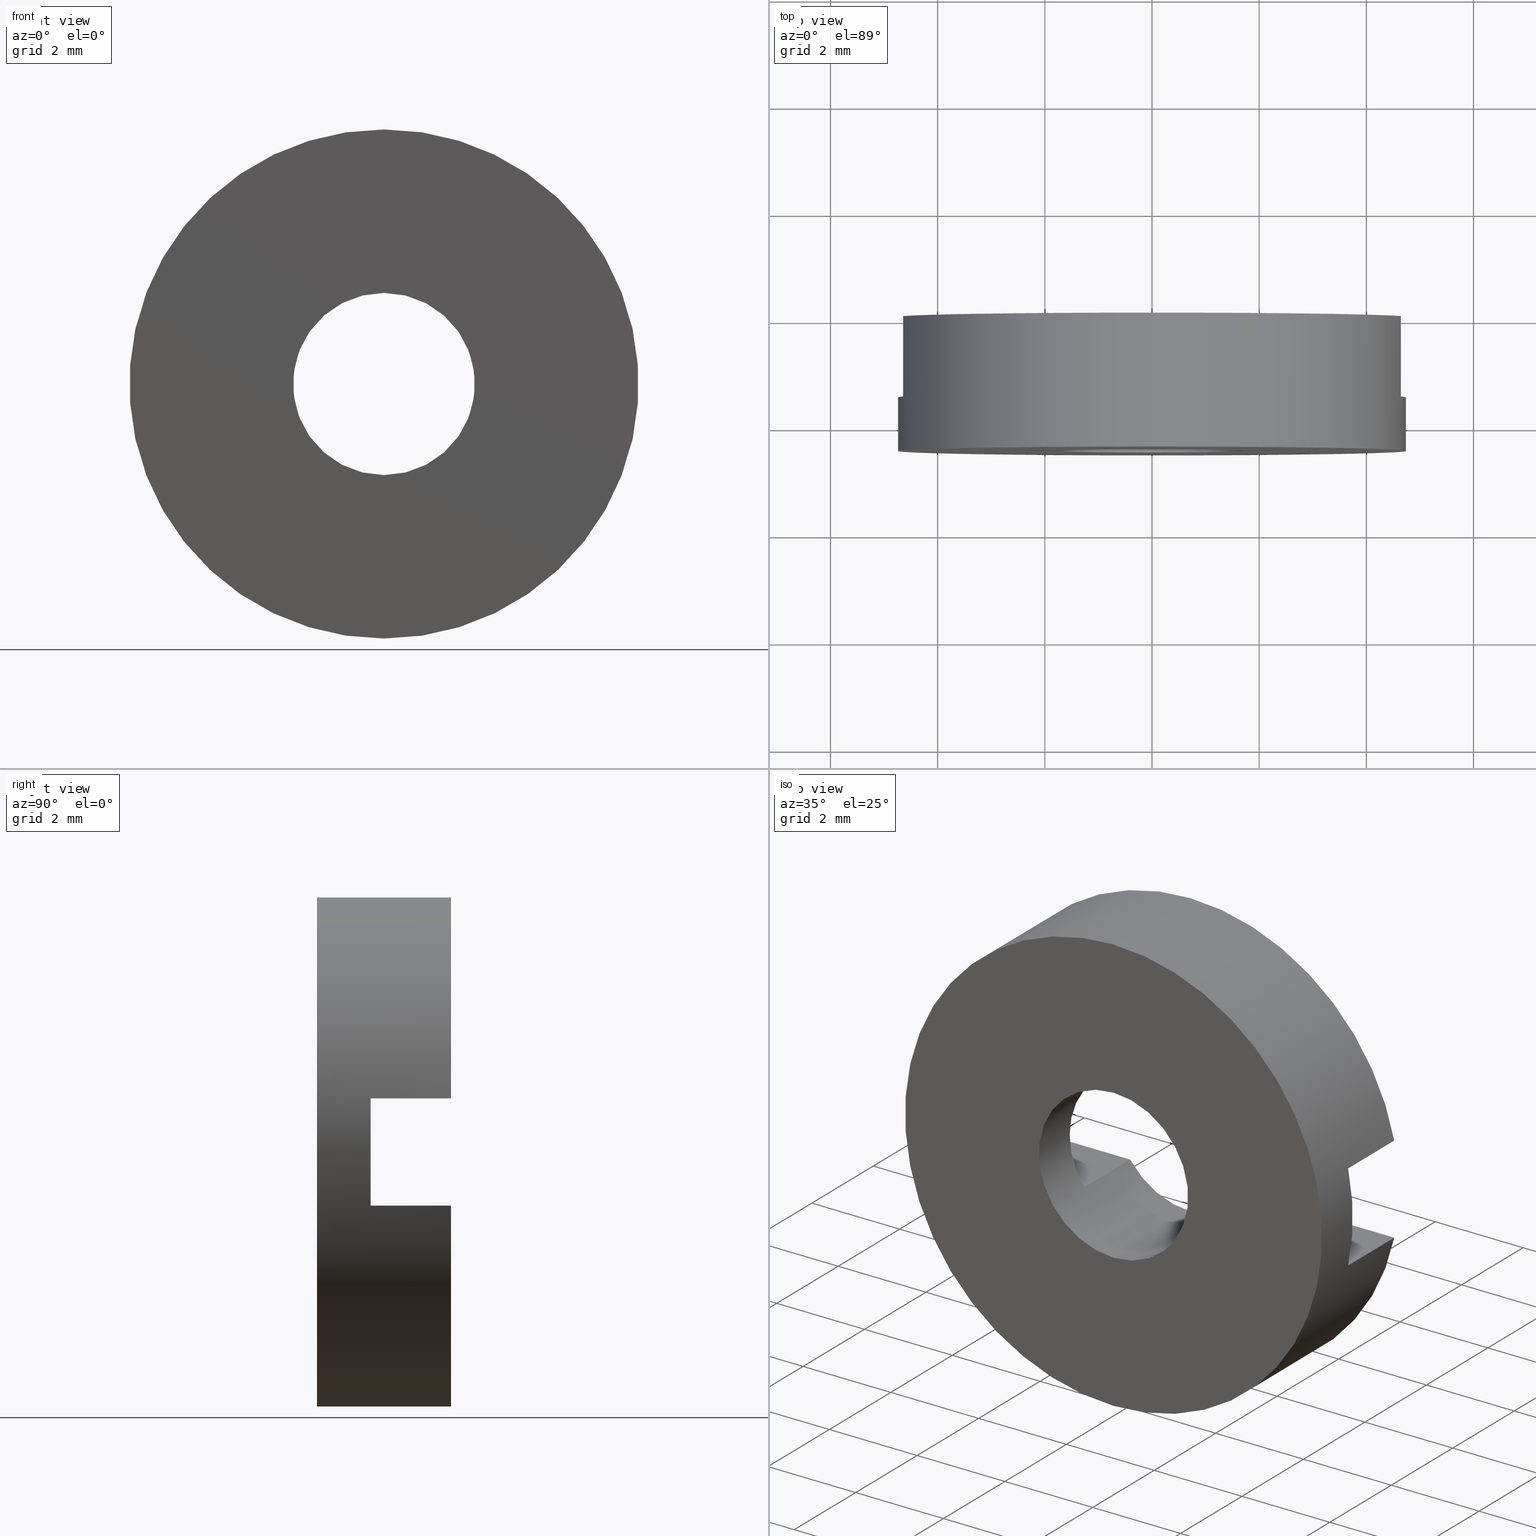
[diagram: canonical four-view strip — front | top / right | iso, engineering-drawing reading convention]
A machine part, canonical four-view strip (front | top / right | iso — engineering-drawing reading convention). The complete STEP part file that produces these views, byte-faithful:
ISO-10303-21;
HEADER;
FILE_DESCRIPTION (( 'STEP AP203' ),
    '1' );
FILE_NAME ('514019.STEP',
    '2019-09-25T08:51:44',
    ( '' ),
    ( '' ),
    'SwSTEP 2.0',
    'SolidWorks 2016',
    '' );
FILE_SCHEMA (( 'CONFIG_CONTROL_DESIGN' ));
ENDSEC;

DATA;
#1 = COORDINATED_UNIVERSAL_TIME_OFFSET ( 8, 0, .AHEAD. ) ;
#2 = EDGE_CURVE ( 'NONE', #170, #5, #144, .T. ) ;
#3 = CALENDAR_DATE ( 2019, 25, 9 ) ;
#4 = SECURITY_CLASSIFICATION_LEVEL ( 'unclassified' ) ;
#5 = VERTEX_POINT ( 'NONE', #381 ) ;
#6 = COORDINATED_UNIVERSAL_TIME_OFFSET ( 8, 0, .AHEAD. ) ;
#7 = PLANE ( 'NONE',  #100 ) ;
#8 = PRODUCT_RELATED_PRODUCT_CATEGORY ( 'detail', '', ( #464 ) ) ;
#9 = AXIS2_PLACEMENT_3D ( 'NONE', #573, #83, #351 ) ;
#10 = VERTEX_POINT ( 'NONE', #476 ) ;
#11 = CARTESIAN_POINT ( 'NONE',  ( 0.0000000000000000000, 56.26084262701361600, 4.750000000000008000 ) ) ;
#12 = PERSON_AND_ORGANIZATION ( #324, #515 ) ;
#13 = VECTOR ( 'NONE', #179, 1000.000000000000000 ) ;
#14 = DIRECTION ( 'NONE',  ( -0.0000000000000000000, 1.000000000000000000, -0.0000000000000000000 ) ) ;
#15 = AXIS2_PLACEMENT_3D ( 'NONE', #86, #182, #330 ) ;
#16 = EDGE_CURVE ( 'NONE', #545, #57, #154, .T. ) ;
#17 = APPROVAL ( #95, 'δָ��' ) ;
#18 = ORIENTED_EDGE ( 'NONE', *, *, #289, .F. ) ;
#19 = EDGE_CURVE ( 'NONE', #195, #440, #503, .T. ) ;
#20 = CARTESIAN_POINT ( 'NONE',  ( -26.85254027261461800, -1.964249787179431300, -1.000000000000000000 ) ) ;
#21 = EDGE_CURVE ( 'NONE', #553, #10, #27, .T. ) ;
#22 = CARTESIAN_POINT ( 'NONE',  ( 2.081899558550509200E-016, -1.964249787179434000, -1.700000000000007300 ) ) ;
#23 = LINE ( 'NONE', #494, #122 ) ;
#24 = ORIENTED_EDGE ( 'NONE', *, *, #21, .F. ) ;
#25 = DIRECTION ( 'NONE',  ( 0.0000000000000000000, -1.000000000000000000, 0.0000000000000000000 ) ) ;
#26 = DIRECTION ( 'NONE',  ( -0.0000000000000000000, 1.000000000000000000, -0.0000000000000000000 ) ) ;
#27 = CIRCLE ( 'NONE', #544, 4.750000000000008000 ) ;
#28 = VERTEX_POINT ( 'NONE', #565 ) ;
#29 = PERSON_AND_ORGANIZATION ( #324, #515 ) ;
#30 = CARTESIAN_POINT ( 'NONE',  ( -26.85254027261461800, -3.464249787179431600, 1.000000000000000000 ) ) ;
#31 = AXIS2_PLACEMENT_3D ( 'NONE', #487, #480, #393 ) ;
#32 = DIRECTION ( 'NONE',  ( 0.0000000000000000000, 0.0000000000000000000, 1.000000000000000000 ) ) ;
#33 = CARTESIAN_POINT ( 'NONE',  ( -26.85254027261461800, -3.464249787179431600, -1.000000000000000000 ) ) ;
#34 = CC_DESIGN_PERSON_AND_ORGANIZATION_ASSIGNMENT ( #129, #465, ( #466 ) ) ;
#35 = DIRECTION ( 'NONE',  ( -0.0000000000000000000, 1.000000000000000000, -0.0000000000000000000 ) ) ;
#36 = CARTESIAN_POINT ( 'NONE',  ( 0.0000000000000000000, 56.26084262701361600, 0.0000000000000000000 ) ) ;
#37 = ORIENTED_EDGE ( 'NONE', *, *, #516, .F. ) ;
#38 = CARTESIAN_POINT ( 'NONE',  ( 0.0000000000000000000, 0.0000000000000000000, 0.0000000000000000000 ) ) ;
#39 = CIRCLE ( 'NONE', #471, 1.700000000000007300 ) ;
#40 = CARTESIAN_POINT ( 'NONE',  ( -26.85254027261461800, -1.964249787179431300, -1.000000000000000000 ) ) ;
#41 = EDGE_LOOP ( 'NONE', ( #283, #276, #468, #383 ) ) ;
#42 = DIRECTION ( 'NONE',  ( 0.0000000000000000000, 1.000000000000000000, 0.0000000000000000000 ) ) ;
#43 = LINE ( 'NONE', #20, #551 ) ;
#44 = PLANE ( 'NONE',  #409 ) ;
#45 = PRODUCT_DEFINITION_SHAPE ( 'NONE', 'NONE',  #117 ) ;
#46 = DIRECTION ( 'NONE',  ( 0.0000000000000000000, 0.0000000000000000000, 1.000000000000000000 ) ) ;
#47 = CC_DESIGN_SECURITY_CLASSIFICATION ( #112, ( #210 ) ) ;
#48 = APPROVAL_ROLE ( '' ) ;
#49 = CC_DESIGN_PERSON_AND_ORGANIZATION_ASSIGNMENT ( #533, #325, ( #210 ) ) ;
#50 = CARTESIAN_POINT ( 'NONE',  ( -26.85254027261461800, -3.464249787179431600, 1.000000000000000000 ) ) ;
#51 = PERSON_AND_ORGANIZATION_ROLE ( 'classification_officer' ) ;
#52 = APPROVAL_DATE_TIME ( #373, #235 ) ;
#53 = ADVANCED_FACE ( 'NONE', ( #312 ), #295, .F. ) ;
#54 = VECTOR ( 'NONE', #554, 1000.000000000000000 ) ;
#55 = DATE_TIME_ROLE ( 'creation_date' ) ;
#56 = APPROVAL_STATUS ( 'not_yet_approved' ) ;
#57 = VERTEX_POINT ( 'NONE', #568 ) ;
#58 = AXIS2_PLACEMENT_3D ( 'NONE', #119, #481, #209 ) ;
#59 = ORIENTED_EDGE ( 'NONE', *, *, #477, .T. ) ;
#60 = EDGE_CURVE ( 'NONE', #243, #5, #290, .T. ) ;
#61 = FACE_OUTER_BOUND ( 'NONE', #316, .T. ) ;
#62 = EDGE_CURVE ( 'NONE', #28, #545, #498, .T. ) ;
#63 = ORIENTED_EDGE ( 'NONE', *, *, #571, .T. ) ;
#64 = PERSON_AND_ORGANIZATION ( #324, #515 ) ;
#65 = LINE ( 'NONE', #92, #13 ) ;
#66 = CARTESIAN_POINT ( 'NONE',  ( 1.700000000000007300, -1.964249787179431300, 0.0000000000000000000 ) ) ;
#67 = EDGE_CURVE ( 'NONE', #553, #28, #225, .T. ) ;
#68 = AXIS2_PLACEMENT_3D ( 'NONE', #395, #172, #580 ) ;
#69 = EDGE_LOOP ( 'NONE', ( #125, #59, #107, #582 ) ) ;
#70 = VERTEX_POINT ( 'NONE', #473 ) ;
#71 = FACE_OUTER_BOUND ( 'NONE', #394, .T. ) ;
#72 = CARTESIAN_POINT ( 'NONE',  ( 0.0000000000000000000, -1.964249787179434000, 0.0000000000000000000 ) ) ;
#73 = VECTOR ( 'NONE', #354, 1000.000000000000000 ) ;
#74 = ORIENTED_EDGE ( 'NONE', *, *, #19, .T. ) ;
#75 = CARTESIAN_POINT ( 'NONE',  ( 0.0000000000000000000, -4.464249787179428900, 0.0000000000000000000 ) ) ;
#76 = ORIENTED_EDGE ( 'NONE', *, *, #91, .T. ) ;
#77 = CARTESIAN_POINT ( 'NONE',  ( 4.643543905251684500, -3.464249787179428400, 0.9999999999999995600 ) ) ;
#78 = AXIS2_PLACEMENT_3D ( 'NONE', #438, #264, #46 ) ;
#79 = DATE_AND_TIME ( #139, #185 ) ;
#80 = VECTOR ( 'NONE', #180, 1000.000000000000000 ) ;
#81 = ORIENTED_EDGE ( 'NONE', *, *, #548, .F. ) ;
#82 = CARTESIAN_POINT ( 'NONE',  ( -26.85254027261461800, -3.464249787179431600, -1.000000000000000000 ) ) ;
#83 = DIRECTION ( 'NONE',  ( -0.0000000000000000000, 1.000000000000000000, -0.0000000000000000000 ) ) ;
#84 = EDGE_LOOP ( 'NONE', ( #190, #108, #415, #379, #399, #577, #460, #196 ) ) ;
#85 = DATE_AND_TIME ( #207, #110 ) ;
#86 = CARTESIAN_POINT ( 'NONE',  ( 0.0000000000000000000, 56.26084262701361600, 0.0000000000000000000 ) ) ;
#87 = AXIS2_PLACEMENT_3D ( 'NONE', #313, #320, #500 ) ;
#88 = FACE_OUTER_BOUND ( 'NONE', #84, .T. ) ;
#89 = PRODUCT ( '514019', '514019', '', ( #191 ) ) ;
#90 = DIRECTION ( 'NONE',  ( 0.0000000000000000000, -0.0000000000000000000, 1.000000000000000000 ) ) ;
#91 = EDGE_CURVE ( 'NONE', #529, #256, #23, .T. ) ;
#92 = CARTESIAN_POINT ( 'NONE',  ( -1.374772708486760900, 56.26084262701361600, -1.000000000000000000 ) ) ;
#93 = VECTOR ( 'NONE', #25, 1000.000000000000000 ) ;
#94 = DIRECTION ( 'NONE',  ( -0.0000000000000000000, 0.0000000000000000000, 1.000000000000000000 ) ) ;
#95 = APPROVAL_STATUS ( 'not_yet_approved' ) ;
#96 = PERSON_AND_ORGANIZATION ( #324, #515 ) ;
#97 = APPROVAL_ROLE ( '' ) ;
#98 = ORIENTED_EDGE ( 'NONE', *, *, #212, .F. ) ;
#99 = APPROVAL_ROLE ( '' ) ;
#100 = AXIS2_PLACEMENT_3D ( 'NONE', #66, #493, #575 ) ;
#101 = VERTEX_POINT ( 'NONE', #22 ) ;
#102 = ORIENTED_EDGE ( 'NONE', *, *, #288, .F. ) ;
#103 = APPLICATION_CONTEXT ( 'configuration controlled 3d designs of mechanical parts and assemblies' ) ;
#104 = APPROVAL_PERSON_ORGANIZATION ( #64, #17, #403 ) ;
#105 = APPROVAL_STATUS ( 'not_yet_approved' ) ;
#106 = LINE ( 'NONE', #584, #391 ) ;
#107 = ORIENTED_EDGE ( 'NONE', *, *, #136, .T. ) ;
#108 = ORIENTED_EDGE ( 'NONE', *, *, #527, .F. ) ;
#109 = ORIENTED_EDGE ( 'NONE', *, *, #414, .F. ) ;
#110 = LOCAL_TIME ( 16, 51, 44.00000000000000000, #461 ) ;
#111 = EDGE_CURVE ( 'NONE', #57, #272, #238, .T. ) ;
#112 = SECURITY_CLASSIFICATION ( '', '', #4 ) ;
#113 = ORIENTED_EDGE ( 'NONE', *, *, #560, .T. ) ;
#114 = EDGE_LOOP ( 'NONE', ( #401, #137, #423, #98, #439, #555 ) ) ;
#115 = CALENDAR_DATE ( 2019, 25, 9 ) ;
#116 = VECTOR ( 'NONE', #35, 1000.000000000000000 ) ;
#117 = PRODUCT_DEFINITION ( 'δ֪', '', #210, #250 ) ;
#118 = CC_DESIGN_APPROVAL ( #17, ( #434 ) ) ;
#119 = CARTESIAN_POINT ( 'NONE',  ( 0.0000000000000000000, -3.464249787179428400, 0.0000000000000000000 ) ) ;
#120 = PLANE ( 'NONE',  #309 ) ;
#121 = ADVANCED_FACE ( 'NONE', ( #488 ), #485, .F. ) ;
#122 = VECTOR ( 'NONE', #221, 1000.000000000000000 ) ;
#123 = DIRECTION ( 'NONE',  ( 0.0000000000000000000, 0.0000000000000000000, -1.000000000000000000 ) ) ;
#124 = ORIENTED_EDGE ( 'NONE', *, *, #546, .F. ) ;
#125 = ORIENTED_EDGE ( 'NONE', *, *, #414, .T. ) ;
#126 = VERTEX_POINT ( 'NONE', #432 ) ;
#127 = CARTESIAN_POINT ( 'NONE',  ( 2.081899558550509200E-016, -4.464249787179428900, -1.700000000000007300 ) ) ;
#128 = AXIS2_PLACEMENT_3D ( 'NONE', #362, #181, #358 ) ;
#129 = PERSON_AND_ORGANIZATION ( #324, #515 ) ;
#130 = CIRCLE ( 'NONE', #382, 1.700000000000007300 ) ;
#131 = PLANE ( 'NONE',  #374 ) ;
#132 = DIRECTION ( 'NONE',  ( 0.0000000000000000000, 0.0000000000000000000, 1.000000000000000000 ) ) ;
#133 = ORIENTED_EDGE ( 'NONE', *, *, #62, .T. ) ;
#134 = DIRECTION ( 'NONE',  ( -1.000000000000000000, -0.0000000000000000000, -0.0000000000000000000 ) ) ;
#135 = DIRECTION ( 'NONE',  ( 0.0000000000000000000, 0.0000000000000000000, 1.000000000000000000 ) ) ;
#136 = EDGE_CURVE ( 'NONE', #529, #509, #294, .T. ) ;
#137 = ORIENTED_EDGE ( 'NONE', *, *, #289, .T. ) ;
#138 = DIRECTION ( 'NONE',  ( 1.000000000000000000, 0.0000000000000000000, 0.0000000000000000000 ) ) ;
#139 = CALENDAR_DATE ( 2019, 25, 9 ) ;
#140 = DIRECTION ( 'NONE',  ( 1.000000000000000000, 0.0000000000000000000, 0.0000000000000000000 ) ) ;
#141 = DIRECTION ( 'NONE',  ( -0.0000000000000000000, 0.0000000000000000000, 1.000000000000000000 ) ) ;
#142 = APPROVAL ( #56, 'δָ��' ) ;
#143 = EDGE_CURVE ( 'NONE', #126, #243, #385, .T. ) ;
#144 = CIRCLE ( 'NONE', #267, 4.750000000000008000 ) ;
#145 = ORIENTED_EDGE ( 'NONE', *, *, #516, .T. ) ;
#146 = APPROVAL_STATUS ( 'not_yet_approved' ) ;
#147 = FACE_OUTER_BOUND ( 'NONE', #41, .T. ) ;
#148 = COORDINATED_UNIVERSAL_TIME_OFFSET ( 8, 0, .AHEAD. ) ;
#149 = APPROVAL_PERSON_ORGANIZATION ( #263, #518, #364 ) ;
#150 = DATE_TIME_ROLE ( 'classification_date' ) ;
#151 = CC_DESIGN_PERSON_AND_ORGANIZATION_ASSIGNMENT ( #377, #365, ( #89 ) ) ;
#152 = EDGE_CURVE ( 'NONE', #243, #126, #329, .T. ) ;
#153 = ORIENTED_EDGE ( 'NONE', *, *, #143, .F. ) ;
#154 = CIRCLE ( 'NONE', #58, 1.700000000000007300 ) ;
#155 = PERSON_AND_ORGANIZATION ( #324, #515 ) ;
#156 = FACE_OUTER_BOUND ( 'NONE', #205, .T. ) ;
#157 = ORIENTED_EDGE ( 'NONE', *, *, #111, .T. ) ;
#158 = CARTESIAN_POINT ( 'NONE',  ( 1.700000000000007300, -1.964249787179431300, 0.0000000000000000000 ) ) ;
#159 = ORIENTED_EDGE ( 'NONE', *, *, #588, .F. ) ;
#160 = CARTESIAN_POINT ( 'NONE',  ( -4.643543905251693400, -1.964249787179431300, 1.000000000000000000 ) ) ;
#161 = VECTOR ( 'NONE', #14, 1000.000000000000000 ) ;
#162 = CC_DESIGN_PERSON_AND_ORGANIZATION_ASSIGNMENT ( #29, #453, ( #112 ) ) ;
#163 = VECTOR ( 'NONE', #386, 1000.000000000000000 ) ;
#164 = PERSON_AND_ORGANIZATION ( #324, #515 ) ;
#165 = DIRECTION ( 'NONE',  ( -0.0000000000000000000, 1.000000000000000000, -0.0000000000000000000 ) ) ;
#166 = DIRECTION ( 'NONE',  ( -0.0000000000000000000, -1.000000000000000000, -0.0000000000000000000 ) ) ;
#167 = DIRECTION ( 'NONE',  ( -0.0000000000000000000, 1.000000000000000000, -0.0000000000000000000 ) ) ;
#168 = CARTESIAN_POINT ( 'NONE',  ( 0.0000000000000000000, -4.464249787179428900, 4.750000000000007100 ) ) ;
#169 =( LENGTH_UNIT ( ) NAMED_UNIT ( * ) SI_UNIT ( .MILLI., .METRE. ) );
#170 = VERTEX_POINT ( 'NONE', #160 ) ;
#171 = VERTEX_POINT ( 'NONE', #490 ) ;
#172 = DIRECTION ( 'NONE',  ( 0.0000000000000000000, 1.000000000000000000, 0.0000000000000000000 ) ) ;
#173 = CC_DESIGN_DATE_AND_TIME_ASSIGNMENT ( #79, #55, ( #117 ) ) ;
#174 =( NAMED_UNIT ( * ) SI_UNIT ( $, .STERADIAN. ) SOLID_ANGLE_UNIT ( ) );
#175 = LINE ( 'NONE', #341, #397 ) ;
#176 = PRODUCT_DEFINITION_SHAPE ( 'NONE', 'NONE',  #213 ) ;
#177 = CARTESIAN_POINT ( 'NONE',  ( -26.85254027261461800, -3.464249787179431600, 1.000000000000000000 ) ) ;
#178 = CC_DESIGN_PERSON_AND_ORGANIZATION_ASSIGNMENT ( #514, #459, ( #213 ) ) ;
#179 = DIRECTION ( 'NONE',  ( 0.0000000000000000000, -1.000000000000000000, 0.0000000000000000000 ) ) ;
#180 = DIRECTION ( 'NONE',  ( -0.0000000000000000000, 1.000000000000000000, -0.0000000000000000000 ) ) ;
#181 = DIRECTION ( 'NONE',  ( -0.0000000000000000000, 1.000000000000000000, -0.0000000000000000000 ) ) ;
#182 = DIRECTION ( 'NONE',  ( -0.0000000000000000000, 1.000000000000000000, -0.0000000000000000000 ) ) ;
#183 = APPLICATION_PROTOCOL_DEFINITION ( 'international standard', 'config_control_design', 1994, #370 ) ;
#184 = DIRECTION ( 'NONE',  ( 0.0000000000000000000, 0.0000000000000000000, 1.000000000000000000 ) ) ;
#185 = LOCAL_TIME ( 16, 51, 44.00000000000000000, #148 ) ;
#186 = APPLICATION_PROTOCOL_DEFINITION ( 'international standard', 'config_control_design', 1994, #549 ) ;
#187 = LINE ( 'NONE', #427, #463 ) ;
#188 = PRODUCT_RELATED_PRODUCT_CATEGORY ( 'detail', '', ( #89 ) ) ;
#189 = AXIS2_PLACEMENT_3D ( 'NONE', #158, #424, #478 ) ;
#190 = ORIENTED_EDGE ( 'NONE', *, *, #398, .F. ) ;
#191 = MECHANICAL_CONTEXT ( 'NONE', #103, 'mechanical' ) ;
#192 = LINE ( 'NONE', #255, #338 ) ;
#193 = VERTEX_POINT ( 'NONE', #127 ) ;
#194 = DESIGN_CONTEXT ( 'detailed design', #370, 'design' ) ;
#195 = VERTEX_POINT ( 'NONE', #308 ) ;
#196 = ORIENTED_EDGE ( 'NONE', *, *, #562, .T. ) ;
#197 = VECTOR ( 'NONE', #343, 1000.000000000000000 ) ;
#198 = EDGE_CURVE ( 'NONE', #170, #256, #211, .T. ) ;
#199 = DATE_AND_TIME ( #578, #367 ) ;
#200 = CC_DESIGN_DATE_AND_TIME_ASSIGNMENT ( #232, #241, ( #112 ) ) ;
#201 = VECTOR ( 'NONE', #266, 1000.000000000000000 ) ;
#202 = EDGE_LOOP ( 'NONE', ( #317, #153 ) ) ;
#203 = CARTESIAN_POINT ( 'NONE',  ( 4.643543905251685400, 56.26084262701361600, -1.000000000000000000 ) ) ;
#204 = ORIENTED_EDGE ( 'NONE', *, *, #136, .F. ) ;
#205 = EDGE_LOOP ( 'NONE', ( #441, #133, #336, #157 ) ) ;
#206 = ORIENTED_EDGE ( 'NONE', *, *, #212, .T. ) ;
#207 = CALENDAR_DATE ( 2019, 25, 9 ) ;
#208 = FACE_OUTER_BOUND ( 'NONE', #428, .T. ) ;
#209 = DIRECTION ( 'NONE',  ( 0.0000000000000000000, 0.0000000000000000000, 1.000000000000000000 ) ) ;
#210 = PRODUCT_DEFINITION_FORMATION_WITH_SPECIFIED_SOURCE ( '�κ�', '', #89, .NOT_KNOWN. ) ;
#211 = LINE ( 'NONE', #570, #163 ) ;
#212 = EDGE_CURVE ( 'NONE', #101, #70, #348, .T. ) ;
#213 = PRODUCT_DEFINITION ( 'δ֪', '', #466, #194 ) ;
#214 = DIRECTION ( 'NONE',  ( 0.0000000000000000000, 0.0000000000000000000, 1.000000000000000000 ) ) ;
#215 = COORDINATED_UNIVERSAL_TIME_OFFSET ( 8, 0, .AHEAD. ) ;
#216 = DIRECTION ( 'NONE',  ( -0.0000000000000000000, 1.000000000000000000, 0.0000000000000000000 ) ) ;
#217 = CARTESIAN_POINT ( 'NONE',  ( -1.374772708486760900, -1.964249787179434000, 0.9999999999999995600 ) ) ;
#218 = ORIENTED_EDGE ( 'NONE', *, *, #588, .T. ) ;
#219 = ORIENTED_EDGE ( 'NONE', *, *, #2, .T. ) ;
#220 = LOCAL_TIME ( 16, 51, 44.00000000000000000, #6 ) ;
#221 = DIRECTION ( 'NONE',  ( -0.0000000000000000000, 1.000000000000000000, -0.0000000000000000000 ) ) ;
#222 = VECTOR ( 'NONE', #140, 1000.000000000000000 ) ;
#223 = ADVANCED_BREP_SHAPE_REPRESENTATION ( '514019', ( #585, #447 ), #369 ) ;
#224 = CARTESIAN_POINT ( 'NONE',  ( 0.0000000000000000000, 56.26084262701361600, 0.0000000000000000000 ) ) ;
#225 = LINE ( 'NONE', #203, #286 ) ;
#226 = CARTESIAN_POINT ( 'NONE',  ( 0.0000000000000000000, 0.0000000000000000000, 0.0000000000000000000 ) ) ;
#227 = ORIENTED_EDGE ( 'NONE', *, *, #525, .F. ) ;
#228 = VERTEX_POINT ( 'NONE', #306 ) ;
#229 = CARTESIAN_POINT ( 'NONE',  ( 1.374772708486760900, 56.26084262701361600, -1.000000000000000000 ) ) ;
#230 = ORIENTED_EDGE ( 'NONE', *, *, #445, .F. ) ;
#231 = DIRECTION ( 'NONE',  ( 0.0000000000000000000, 1.000000000000000000, 0.0000000000000000000 ) ) ;
#232 = DATE_AND_TIME ( #572, #220 ) ;
#233 = PLANE ( 'NONE',  #297 ) ;
#234 = ADVANCED_FACE ( 'NONE', ( #147 ), #131, .F. ) ;
#235 = APPROVAL ( #146, 'δָ��' ) ;
#236 = APPROVAL_ROLE ( '' ) ;
#237 = APPROVAL_STATUS ( 'not_yet_approved' ) ;
#238 = LINE ( 'NONE', #30, #197 ) ;
#239 = DATE_AND_TIME ( #350, #474 ) ;
#240 = LINE ( 'NONE', #359, #201 ) ;
#241 = DATE_TIME_ROLE ( 'classification_date' ) ;
#242 = ORIENTED_EDGE ( 'NONE', *, *, #91, .F. ) ;
#243 = VERTEX_POINT ( 'NONE', #168 ) ;
#244 = PERSON_AND_ORGANIZATION ( #324, #515 ) ;
#245 = ORIENTED_EDGE ( 'NONE', *, *, #477, .F. ) ;
#246 = DIRECTION ( 'NONE',  ( -0.0000000000000000000, 1.000000000000000000, -0.0000000000000000000 ) ) ;
#247 = APPROVAL_PERSON_ORGANIZATION ( #244, #339, #236 ) ;
#248 = AXIS2_PLACEMENT_3D ( 'NONE', #501, #231, #132 ) ;
#249 = CYLINDRICAL_SURFACE ( 'NONE', #536, 1.700000000000007300 ) ;
#250 = DESIGN_CONTEXT ( 'detailed design', #549, 'design' ) ;
#251 = DIRECTION ( 'NONE',  ( -0.0000000000000000000, 1.000000000000000000, -0.0000000000000000000 ) ) ;
#252 = APPROVAL_DATE_TIME ( #489, #142 ) ;
#253 = CARTESIAN_POINT ( 'NONE',  ( 1.374772708486760900, 56.26084262701361600, 1.000000000000000000 ) ) ;
#254 = ADVANCED_FACE ( 'NONE', ( #387, #275 ), #120, .F. ) ;
#255 = CARTESIAN_POINT ( 'NONE',  ( 4.643543905251685400, 56.26084262701361600, 1.000000000000000000 ) ) ;
#256 = VERTEX_POINT ( 'NONE', #217 ) ;
#257 = VECTOR ( 'NONE', #520, 1000.000000000000000 ) ;
#258 = CC_DESIGN_APPROVAL ( #235, ( #112 ) ) ;
#259 = DIRECTION ( 'NONE',  ( 1.000000000000000000, 0.0000000000000000000, 0.0000000000000000000 ) ) ;
#260 = DIRECTION ( 'NONE',  ( 0.0000000000000000000, 0.0000000000000000000, -1.000000000000000000 ) ) ;
#261 = CIRCLE ( 'NONE', #78, 4.750000000000008000 ) ;
#262 = CALENDAR_DATE ( 2019, 25, 9 ) ;
#263 = PERSON_AND_ORGANIZATION ( #324, #515 ) ;
#264 = DIRECTION ( 'NONE',  ( -0.0000000000000000000, 1.000000000000000000, -0.0000000000000000000 ) ) ;
#265 = CARTESIAN_POINT ( 'NONE',  ( 4.643543905251672000, -1.964249787179431300, -1.000000000000000000 ) ) ;
#266 = DIRECTION ( 'NONE',  ( -0.0000000000000000000, 1.000000000000000000, -0.0000000000000000000 ) ) ;
#267 = AXIS2_PLACEMENT_3D ( 'NONE', #72, #246, #528 ) ;
#268 = CARTESIAN_POINT ( 'NONE',  ( -1.374772708486760900, -3.464249787179428400, 0.9999999999999995600 ) ) ;
#269 = CIRCLE ( 'NONE', #128, 1.700000000000007300 ) ;
#270 = CARTESIAN_POINT ( 'NONE',  ( 0.0000000000000000000, -1.964249787179434000, 0.0000000000000000000 ) ) ;
#271 = DIRECTION ( 'NONE',  ( 0.0000000000000000000, 0.0000000000000000000, 1.000000000000000000 ) ) ;
#272 = VERTEX_POINT ( 'NONE', #77 ) ;
#273 = CARTESIAN_POINT ( 'NONE',  ( 0.0000000000000000000, -3.464249787179431600, 0.0000000000000000000 ) ) ;
#274 = ORIENTED_EDGE ( 'NONE', *, *, #198, .T. ) ;
#275 = FACE_BOUND ( 'NONE', #521, .T. ) ;
#276 = ORIENTED_EDGE ( 'NONE', *, *, #560, .F. ) ;
#277 = COORDINATED_UNIVERSAL_TIME_OFFSET ( 8, 0, .AHEAD. ) ;
#278 = CIRCLE ( 'NONE', #279, 4.750000000000008000 ) ;
#279 = AXIS2_PLACEMENT_3D ( 'NONE', #270, #167, #492 ) ;
#280 = ORIENTED_EDGE ( 'NONE', *, *, #522, .T. ) ;
#281 = CC_DESIGN_DATE_AND_TIME_ASSIGNMENT ( #239, #150, ( #434 ) ) ;
#282 = APPROVAL_STATUS ( 'not_yet_approved' ) ;
#283 = ORIENTED_EDGE ( 'NONE', *, *, #371, .F. ) ;
#284 = LINE ( 'NONE', #253, #93 ) ;
#285 = ORIENTED_EDGE ( 'NONE', *, *, #322, .F. ) ;
#286 = VECTOR ( 'NONE', #564, 1000.000000000000000 ) ;
#287 = ORIENTED_EDGE ( 'NONE', *, *, #143, .T. ) ;
#288 = EDGE_CURVE ( 'NONE', #472, #57, #284, .T. ) ;
#289 = EDGE_CURVE ( 'NONE', #10, #440, #261, .T. ) ;
#290 = LINE ( 'NONE', #11, #161 ) ;
#291 = DATE_AND_TIME ( #115, #561 ) ;
#292 = CIRCLE ( 'NONE', #328, 1.700000000000007300 ) ;
#293 = DIRECTION ( 'NONE',  ( 0.0000000000000000000, 0.0000000000000000000, 1.000000000000000000 ) ) ;
#294 = CIRCLE ( 'NONE', #495, 1.700000000000007300 ) ;
#295 = PLANE ( 'NONE',  #189 ) ;
#296 = VERTEX_POINT ( 'NONE', #305 ) ;
#297 = AXIS2_PLACEMENT_3D ( 'NONE', #177, #94, #138 ) ;
#298 = PERSON_AND_ORGANIZATION ( #324, #515 ) ;
#299 = CARTESIAN_POINT ( 'NONE',  ( -26.85254027261461800, -3.464249787179431600, -1.000000000000000000 ) ) ;
#300 = ORIENTED_EDGE ( 'NONE', *, *, #378, .T. ) ;
#301 = ORIENTED_EDGE ( 'NONE', *, *, #60, .F. ) ;
#302 = CARTESIAN_POINT ( 'NONE',  ( 0.0000000000000000000, -4.464249787179428900, 1.700000000000007300 ) ) ;
#303 = DIRECTION ( 'NONE',  ( -1.000000000000000000, -0.0000000000000000000, -0.0000000000000000000 ) ) ;
#304 = PERSON_AND_ORGANIZATION ( #324, #515 ) ;
#305 = CARTESIAN_POINT ( 'NONE',  ( 4.643543905251672000, -1.964249787179431300, 1.000000000000000000 ) ) ;
#306 = CARTESIAN_POINT ( 'NONE',  ( -4.643543905251684500, -3.464249787179428400, 0.9999999999999995600 ) ) ;
#307 = VERTEX_POINT ( 'NONE', #302 ) ;
#308 = CARTESIAN_POINT ( 'NONE',  ( -4.643543905251684500, -3.464249787179428400, -0.9999999999999995600 ) ) ;
#309 = AXIS2_PLACEMENT_3D ( 'NONE', #483, #216, #531 ) ;
#310 = DIRECTION ( 'NONE',  ( 0.0000000000000000000, 0.0000000000000000000, 1.000000000000000000 ) ) ;
#311 = CLOSED_SHELL ( 'NONE', ( #416, #331, #456, #454, #53, #557, #254, #532, #121, #422, #405, #234, #418 ) ) ;
#312 = FACE_OUTER_BOUND ( 'NONE', #114, .T. ) ;
#313 = CARTESIAN_POINT ( 'NONE',  ( 0.0000000000000000000, -3.464249787179431600, 0.0000000000000000000 ) ) ;
#314 = DIRECTION ( 'NONE',  ( -0.0000000000000000000, 1.000000000000000000, -0.0000000000000000000 ) ) ;
#315 = PLANE ( 'NONE',  #436 ) ;
#316 = EDGE_LOOP ( 'NONE', ( #274, #242, #245, #227 ) ) ;
#317 = ORIENTED_EDGE ( 'NONE', *, *, #152, .F. ) ;
#318 = APPLICATION_PROTOCOL_DEFINITION ( 'international standard', 'config_control_design', 1994, #400 ) ;
#319 = ORIENTED_EDGE ( 'NONE', *, *, #2, .F. ) ;
#320 = DIRECTION ( 'NONE',  ( 0.0000000000000000000, 1.000000000000000000, 0.0000000000000000000 ) ) ;
#321 = DATE_AND_TIME ( #390, #363 ) ;
#322 = EDGE_CURVE ( 'NONE', #171, #472, #39, .T. ) ;
#323 = CC_DESIGN_DATE_AND_TIME_ASSIGNMENT ( #321, #413, ( #213 ) ) ;
#324 = PERSON ( 'δָ��', 'δָ��', 'δָ��', ('δָ��'), ('δָ��'), ('δָ��') ) ;
#325 = PERSON_AND_ORGANIZATION_ROLE ( 'creator' ) ;
#326 = PERSON_AND_ORGANIZATION ( #324, #515 ) ;
#327 = LINE ( 'NONE', #502, #80 ) ;
#328 = AXIS2_PLACEMENT_3D ( 'NONE', #443, #314, #450 ) ;
#329 = CIRCLE ( 'NONE', #9, 4.750000000000007100 ) ;
#330 = DIRECTION ( 'NONE',  ( 0.0000000000000000000, 0.0000000000000000000, 1.000000000000000000 ) ) ;
#331 = ADVANCED_FACE ( 'NONE', ( #372 ), #484, .T. ) ;
#332 = EDGE_LOOP ( 'NONE', ( #526, #540, #206, #113, #204, #76, #519, #230 ) ) ;
#333 = APPROVAL_PERSON_ORGANIZATION ( #12, #235, #97 ) ;
#334 = ORIENTED_EDGE ( 'NONE', *, *, #67, .F. ) ;
#335 = AXIS2_PLACEMENT_3D ( 'NONE', #75, #165, #429 ) ;
#336 = ORIENTED_EDGE ( 'NONE', *, *, #16, .T. ) ;
#337 = COORDINATED_UNIVERSAL_TIME_OFFSET ( 8, 0, .AHEAD. ) ;
#338 = VECTOR ( 'NONE', #26, 1000.000000000000000 ) ;
#339 = APPROVAL ( #237, 'δָ��' ) ;
#340 = ORIENTED_EDGE ( 'NONE', *, *, #378, .F. ) ;
#341 = CARTESIAN_POINT ( 'NONE',  ( -26.85254027261461800, -3.464249787179431600, 1.000000000000000000 ) ) ;
#342 = EDGE_LOOP ( 'NONE', ( #449, #300, #24, #345, #124, #145, #159, #301 ) ) ;
#343 = DIRECTION ( 'NONE',  ( 1.000000000000000000, 0.0000000000000000000, 0.0000000000000000000 ) ) ;
#344 = DIRECTION ( 'NONE',  ( -1.000000000000000000, 0.0000000000000000000, -0.0000000000000000000 ) ) ;
#345 = ORIENTED_EDGE ( 'NONE', *, *, #67, .T. ) ;
#346 = AXIS2_PLACEMENT_3D ( 'NONE', #537, #576, #214 ) ;
#347 = DIRECTION ( 'NONE',  ( -1.000000000000000000, 0.0000000000000000000, -0.0000000000000000000 ) ) ;
#348 = CIRCLE ( 'NONE', #346, 1.700000000000007300 ) ;
#349 = CARTESIAN_POINT ( 'NONE',  ( 0.0000000000000000000, 56.26084262701361600, 0.0000000000000000000 ) ) ;
#350 = CALENDAR_DATE ( 2019, 25, 9 ) ;
#351 = DIRECTION ( 'NONE',  ( 0.0000000000000000000, 0.0000000000000000000, 1.000000000000000000 ) ) ;
#352 = LINE ( 'NONE', #229, #116 ) ;
#353 = EDGE_CURVE ( 'NONE', #553, #407, #417, .T. ) ;
#354 = DIRECTION ( 'NONE',  ( -1.000000000000000000, -0.0000000000000000000, -0.0000000000000000000 ) ) ;
#355 = ORIENTED_EDGE ( 'NONE', *, *, #62, .F. ) ;
#356 = DIRECTION ( 'NONE',  ( -0.0000000000000000000, 1.000000000000000000, -0.0000000000000000000 ) ) ;
#357 = AXIS2_PLACEMENT_3D ( 'NONE', #38, #135, #497 ) ;
#358 = DIRECTION ( 'NONE',  ( 0.0000000000000000000, 0.0000000000000000000, 1.000000000000000000 ) ) ;
#359 = CARTESIAN_POINT ( 'NONE',  ( 5.817072295949937300E-016, 56.26084262701361600, -4.750000000000008000 ) ) ;
#360 = EDGE_LOOP ( 'NONE', ( #467, #102, #63, #37 ) ) ;
#361 = CC_DESIGN_PERSON_AND_ORGANIZATION_ASSIGNMENT ( #304, #411, ( #466 ) ) ;
#362 = CARTESIAN_POINT ( 'NONE',  ( 0.0000000000000000000, -1.964249787179434000, 0.0000000000000000000 ) ) ;
#363 = LOCAL_TIME ( 16, 51, 44.00000000000000000, #431 ) ;
#364 = APPROVAL_ROLE ( '' ) ;
#365 = PERSON_AND_ORGANIZATION_ROLE ( 'design_owner' ) ;
#366 = PERSON_AND_ORGANIZATION_ROLE ( 'design_owner' ) ;
#367 = LOCAL_TIME ( 16, 51, 44.00000000000000000, #277 ) ;
#368 = LOCAL_TIME ( 16, 51, 44.00000000000000000, #491 ) ;
#369 =( GEOMETRIC_REPRESENTATION_CONTEXT ( 3 ) GLOBAL_UNCERTAINTY_ASSIGNED_CONTEXT ( ( #430 ) ) GLOBAL_UNIT_ASSIGNED_CONTEXT ( ( #169, #538, #174 ) ) REPRESENTATION_CONTEXT ( 'NONE', 'WORKASPACE' ) );
#370 = APPLICATION_CONTEXT ( 'configuration controlled 3d designs of mechanical parts and assemblies' ) ;
#371 = EDGE_CURVE ( 'NONE', #509, #195, #106, .T. ) ;
#372 = FACE_OUTER_BOUND ( 'NONE', #342, .T. ) ;
#373 = DATE_AND_TIME ( #376, #469 ) ;
#374 = AXIS2_PLACEMENT_3D ( 'NONE', #33, #260, #347 ) ;
#375 = DIRECTION ( 'NONE',  ( -1.000000000000000000, -0.0000000000000000000, -0.0000000000000000000 ) ) ;
#376 = CALENDAR_DATE ( 2019, 25, 9 ) ;
#377 = PERSON_AND_ORGANIZATION ( #324, #515 ) ;
#378 = EDGE_CURVE ( 'NONE', #126, #10, #240, .T. ) ;
#379 = ORIENTED_EDGE ( 'NONE', *, *, #322, .T. ) ;
#380 = ORIENTED_EDGE ( 'NONE', *, *, #527, .T. ) ;
#381 = CARTESIAN_POINT ( 'NONE',  ( 0.0000000000000000000, -1.964249787179434000, 4.750000000000008000 ) ) ;
#382 = AXIS2_PLACEMENT_3D ( 'NONE', #392, #448, #310 ) ;
#383 = ORIENTED_EDGE ( 'NONE', *, *, #19, .F. ) ;
#384 = CIRCLE ( 'NONE', #68, 4.750000000000008000 ) ;
#385 = CIRCLE ( 'NONE', #335, 4.750000000000007100 ) ;
#386 = DIRECTION ( 'NONE',  ( 1.000000000000000000, 0.0000000000000000000, 0.0000000000000000000 ) ) ;
#387 = FACE_OUTER_BOUND ( 'NONE', #202, .T. ) ;
#388 = CARTESIAN_POINT ( 'NONE',  ( 1.374772708486760900, -3.464249787179428400, -0.9999999999999995600 ) ) ;
#389 = CARTESIAN_POINT ( 'NONE',  ( 0.0000000000000000000, -3.464249787179428400, 0.0000000000000000000 ) ) ;
#390 = CALENDAR_DATE ( 2019, 25, 9 ) ;
#391 = VECTOR ( 'NONE', #134, 1000.000000000000000 ) ;
#392 = CARTESIAN_POINT ( 'NONE',  ( 0.0000000000000000000, -4.464249787179428900, 0.0000000000000000000 ) ) ;
#393 = DIRECTION ( 'NONE',  ( 0.0000000000000000000, 0.0000000000000000000, 1.000000000000000000 ) ) ;
#394 = EDGE_LOOP ( 'NONE', ( #219, #218, #437, #285, #589, #458 ) ) ;
#395 = CARTESIAN_POINT ( 'NONE',  ( 0.0000000000000000000, -3.464249787179428400, 0.0000000000000000000 ) ) ;
#396 = ORIENTED_EDGE ( 'NONE', *, *, #60, .T. ) ;
#397 = VECTOR ( 'NONE', #259, 1000.000000000000000 ) ;
#398 = EDGE_CURVE ( 'NONE', #193, #101, #327, .T. ) ;
#399 = ORIENTED_EDGE ( 'NONE', *, *, #288, .T. ) ;
#400 = APPLICATION_CONTEXT ( 'configuration controlled 3d designs of mechanical parts and assemblies' ) ;
#401 = ORIENTED_EDGE ( 'NONE', *, *, #21, .T. ) ;
#402 = PLANE ( 'NONE',  #87 ) ;
#403 = APPROVAL_ROLE ( '' ) ;
#404 = VECTOR ( 'NONE', #375, 1000.000000000000000 ) ;
#405 = ADVANCED_FACE ( 'NONE', ( #61 ), #233, .F. ) ;
#406 = DIRECTION ( 'NONE',  ( -0.0000000000000000000, 1.000000000000000000, -0.0000000000000000000 ) ) ;
#407 = VERTEX_POINT ( 'NONE', #446 ) ;
#408 = APPROVAL_PERSON_ORGANIZATION ( #155, #479, #99 ) ;
#409 = AXIS2_PLACEMENT_3D ( 'NONE', #273, #42, #90 ) ;
#410 = CYLINDRICAL_SURFACE ( 'NONE', #462, 1.700000000000007300 ) ;
#411 = PERSON_AND_ORGANIZATION_ROLE ( 'creator' ) ;
#412 = MECHANICAL_CONTEXT ( 'NONE', #400, 'mechanical' ) ;
#413 = DATE_TIME_ROLE ( 'creation_date' ) ;
#414 = EDGE_CURVE ( 'NONE', #195, #228, #384, .T. ) ;
#415 = ORIENTED_EDGE ( 'NONE', *, *, #445, .T. ) ;
#416 = ADVANCED_FACE ( 'NONE', ( #421 ), #249, .F. ) ;
#417 = LINE ( 'NONE', #40, #73 ) ;
#418 = ADVANCED_FACE ( 'NONE', ( #535 ), #402, .T. ) ;
#419 = CC_DESIGN_SECURITY_CLASSIFICATION ( #434, ( #466 ) ) ;
#420 = DATE_AND_TIME ( #3, #368 ) ;
#421 = FACE_OUTER_BOUND ( 'NONE', #332, .T. ) ;
#422 = ADVANCED_FACE ( 'NONE', ( #523 ), #315, .F. ) ;
#423 = ORIENTED_EDGE ( 'NONE', *, *, #510, .F. ) ;
#424 = DIRECTION ( 'NONE',  ( 0.0000000000000000000, -1.000000000000000000, 0.0000000000000000000 ) ) ;
#425 = ORIENTED_EDGE ( 'NONE', *, *, #353, .T. ) ;
#426 = CC_DESIGN_APPROVAL ( #142, ( #213 ) ) ;
#427 = CARTESIAN_POINT ( 'NONE',  ( -4.643543905251685400, 56.26084262701361600, 1.000000000000000000 ) ) ;
#428 = EDGE_LOOP ( 'NONE', ( #340, #287, #396, #319, #530, #109, #74, #18 ) ) ;
#429 = DIRECTION ( 'NONE',  ( 0.0000000000000000000, 0.0000000000000000000, 1.000000000000000000 ) ) ;
#430 = UNCERTAINTY_MEASURE_WITH_UNIT (LENGTH_MEASURE( 1.000000000000000100E-005 ), #169, 'distance_accuracy_value', 'NONE');
#431 = COORDINATED_UNIVERSAL_TIME_OFFSET ( 8, 0, .AHEAD. ) ;
#432 = CARTESIAN_POINT ( 'NONE',  ( 5.817072295949936300E-016, -4.464249787179428900, -4.750000000000007100 ) ) ;
#433 = CIRCLE ( 'NONE', #248, 4.750000000000008000 ) ;
#434 = SECURITY_CLASSIFICATION ( '', '', #457 ) ;
#435 = DIRECTION ( 'NONE',  ( 0.0000000000000000000, 0.0000000000000000000, 1.000000000000000000 ) ) ;
#436 = AXIS2_PLACEMENT_3D ( 'NONE', #50, #141, #451 ) ;
#437 = ORIENTED_EDGE ( 'NONE', *, *, #571, .F. ) ;
#438 = CARTESIAN_POINT ( 'NONE',  ( 0.0000000000000000000, -1.964249787179434000, 0.0000000000000000000 ) ) ;
#439 = ORIENTED_EDGE ( 'NONE', *, *, #562, .F. ) ;
#440 = VERTEX_POINT ( 'NONE', #547 ) ;
#441 = ORIENTED_EDGE ( 'NONE', *, *, #546, .T. ) ;
#442 = APPROVAL_PERSON_ORGANIZATION ( #482, #142, #48 ) ;
#443 = CARTESIAN_POINT ( 'NONE',  ( 0.0000000000000000000, -1.964249787179434000, 0.0000000000000000000 ) ) ;
#444 = LINE ( 'NONE', #579, #222 ) ;
#445 = EDGE_CURVE ( 'NONE', #307, #171, #475, .T. ) ;
#446 = CARTESIAN_POINT ( 'NONE',  ( 1.374772708486760900, -1.964249787179434000, -0.9999999999999995600 ) ) ;
#447 = AXIS2_PLACEMENT_3D ( 'NONE', #226, #543, #583 ) ;
#448 = DIRECTION ( 'NONE',  ( -0.0000000000000000000, 1.000000000000000000, -0.0000000000000000000 ) ) ;
#449 = ORIENTED_EDGE ( 'NONE', *, *, #152, .T. ) ;
#450 = DIRECTION ( 'NONE',  ( 0.0000000000000000000, 0.0000000000000000000, 1.000000000000000000 ) ) ;
#451 = DIRECTION ( 'NONE',  ( 1.000000000000000000, 0.0000000000000000000, 0.0000000000000000000 ) ) ;
#452 = LOCAL_TIME ( 16, 51, 44.00000000000000000, #215 ) ;
#453 = PERSON_AND_ORGANIZATION_ROLE ( 'classification_officer' ) ;
#454 = ADVANCED_FACE ( 'NONE', ( #208 ), #567, .T. ) ;
#455 = CARTESIAN_POINT ( 'NONE',  ( 0.0000000000000000000, 56.26084262701361600, 1.700000000000007300 ) ) ;
#456 = ADVANCED_FACE ( 'NONE', ( #71 ), #7, .F. ) ;
#457 = SECURITY_CLASSIFICATION_LEVEL ( 'unclassified' ) ;
#458 = ORIENTED_EDGE ( 'NONE', *, *, #198, .F. ) ;
#459 = PERSON_AND_ORGANIZATION_ROLE ( 'creator' ) ;
#460 = ORIENTED_EDGE ( 'NONE', *, *, #548, .T. ) ;
#461 = COORDINATED_UNIVERSAL_TIME_OFFSET ( 8, 0, .AHEAD. ) ;
#462 = AXIS2_PLACEMENT_3D ( 'NONE', #349, #586, #32 ) ;
#463 = VECTOR ( 'NONE', #574, 1000.000000000000000 ) ;
#464 = PRODUCT ( '514019', '514019', '', ( #412 ) ) ;
#465 = PERSON_AND_ORGANIZATION_ROLE ( 'design_supplier' ) ;
#466 = PRODUCT_DEFINITION_FORMATION_WITH_SPECIFIED_SOURCE ( '�κ�', '', #464, .NOT_KNOWN. ) ;
#467 = ORIENTED_EDGE ( 'NONE', *, *, #111, .F. ) ;
#468 = ORIENTED_EDGE ( 'NONE', *, *, #510, .T. ) ;
#469 = LOCAL_TIME ( 16, 51, 44.00000000000000000, #499 ) ;
#470 = CC_DESIGN_PERSON_AND_ORGANIZATION_ASSIGNMENT ( #326, #51, ( #434 ) ) ;
#471 = AXIS2_PLACEMENT_3D ( 'NONE', #587, #406, #271 ) ;
#472 = VERTEX_POINT ( 'NONE', #539 ) ;
#473 = CARTESIAN_POINT ( 'NONE',  ( -1.374772708486760900, -1.964249787179434000, -0.9999999999999995600 ) ) ;
#474 = LOCAL_TIME ( 16, 51, 44.00000000000000000, #1 ) ;
#475 = LINE ( 'NONE', #455, #54 ) ;
#476 = CARTESIAN_POINT ( 'NONE',  ( 5.817072295949937300E-016, -1.964249787179434000, -4.750000000000008000 ) ) ;
#477 = EDGE_CURVE ( 'NONE', #228, #529, #175, .T. ) ;
#478 = DIRECTION ( 'NONE',  ( 0.0000000000000000000, -0.0000000000000000000, -1.000000000000000000 ) ) ;
#479 = APPROVAL ( #105, 'δָ��' ) ;
#480 = DIRECTION ( 'NONE',  ( -0.0000000000000000000, 1.000000000000000000, -0.0000000000000000000 ) ) ;
#481 = DIRECTION ( 'NONE',  ( -0.0000000000000000000, -1.000000000000000000, -0.0000000000000000000 ) ) ;
#482 = PERSON_AND_ORGANIZATION ( #324, #515 ) ;
#483 = CARTESIAN_POINT ( 'NONE',  ( 1.700000000000007300, -4.464249787179430700, 0.0000000000000000000 ) ) ;
#484 = CYLINDRICAL_SURFACE ( 'NONE', #506, 4.750000000000008000 ) ;
#485 = PLANE ( 'NONE',  #563 ) ;
#486 = CARTESIAN_POINT ( 'NONE',  ( -1.374772708486760900, -3.464249787179428400, -0.9999999999999995600 ) ) ;
#487 = CARTESIAN_POINT ( 'NONE',  ( 0.0000000000000000000, -4.464249787179428900, 0.0000000000000000000 ) ) ;
#488 = FACE_OUTER_BOUND ( 'NONE', #511, .T. ) ;
#489 = DATE_AND_TIME ( #262, #452 ) ;
#490 = CARTESIAN_POINT ( 'NONE',  ( 0.0000000000000000000, -1.964249787179434000, 1.700000000000007300 ) ) ;
#491 = COORDINATED_UNIVERSAL_TIME_OFFSET ( 8, 0, .AHEAD. ) ;
#492 = DIRECTION ( 'NONE',  ( 0.0000000000000000000, 0.0000000000000000000, 1.000000000000000000 ) ) ;
#493 = DIRECTION ( 'NONE',  ( 0.0000000000000000000, -1.000000000000000000, 0.0000000000000000000 ) ) ;
#494 = CARTESIAN_POINT ( 'NONE',  ( -1.374772708486760900, 56.26084262701361600, 1.000000000000000000 ) ) ;
#495 = AXIS2_PLACEMENT_3D ( 'NONE', #389, #166, #435 ) ;
#496 = CC_DESIGN_APPROVAL ( #339, ( #466 ) ) ;
#497 = DIRECTION ( 'NONE',  ( 1.000000000000000000, 0.0000000000000000000, 0.0000000000000000000 ) ) ;
#498 = LINE ( 'NONE', #299, #404 ) ;
#499 = COORDINATED_UNIVERSAL_TIME_OFFSET ( 8, 0, .AHEAD. ) ;
#500 = DIRECTION ( 'NONE',  ( 0.0000000000000000000, -0.0000000000000000000, 1.000000000000000000 ) ) ;
#501 = CARTESIAN_POINT ( 'NONE',  ( 0.0000000000000000000, -3.464249787179428400, 0.0000000000000000000 ) ) ;
#502 = CARTESIAN_POINT ( 'NONE',  ( 2.081899558550509200E-016, 56.26084262701361600, -1.700000000000007300 ) ) ;
#503 = LINE ( 'NONE', #517, #257 ) ;
#504 = DIRECTION ( 'NONE',  ( 0.0000000000000000000, 0.0000000000000000000, 1.000000000000000000 ) ) ;
#505 = PERSON_AND_ORGANIZATION_ROLE ( 'creator' ) ;
#506 = AXIS2_PLACEMENT_3D ( 'NONE', #36, #356, #184 ) ;
#507 = APPROVAL_DATE_TIME ( #420, #518 ) ;
#508 = SHAPE_DEFINITION_REPRESENTATION ( #176, #223 ) ;
#509 = VERTEX_POINT ( 'NONE', #486 ) ;
#510 = EDGE_CURVE ( 'NONE', #70, #440, #43, .T. ) ;
#511 = EDGE_LOOP ( 'NONE', ( #425, #81, #355, #334 ) ) ;
#512 = CIRCLE ( 'NONE', #31, 1.700000000000007300 ) ;
#513 = CC_DESIGN_APPROVAL ( #479, ( #210 ) ) ;
#514 = PERSON_AND_ORGANIZATION ( #324, #515 ) ;
#515 = ORGANIZATION ( 'δָ��', 'δָ��', '' ) ;
#516 = EDGE_CURVE ( 'NONE', #272, #296, #192, .T. ) ;
#517 = CARTESIAN_POINT ( 'NONE',  ( -4.643543905251685400, 56.26084262701361600, -1.000000000000000000 ) ) ;
#518 = APPROVAL ( #282, 'δָ��' ) ;
#519 = ORIENTED_EDGE ( 'NONE', *, *, #541, .T. ) ;
#520 = DIRECTION ( 'NONE',  ( -0.0000000000000000000, 1.000000000000000000, -0.0000000000000000000 ) ) ;
#521 = EDGE_LOOP ( 'NONE', ( #380, #280 ) ) ;
#522 = EDGE_CURVE ( 'NONE', #193, #307, #512, .T. ) ;
#523 = FACE_OUTER_BOUND ( 'NONE', #360, .T. ) ;
#524 = CARTESIAN_POINT ( 'NONE',  ( 0.0000000000000000000, -1.964249787179434000, 0.0000000000000000000 ) ) ;
#525 = EDGE_CURVE ( 'NONE', #170, #228, #187, .T. ) ;
#526 = ORIENTED_EDGE ( 'NONE', *, *, #522, .F. ) ;
#527 = EDGE_CURVE ( 'NONE', #307, #193, #130, .T. ) ;
#528 = DIRECTION ( 'NONE',  ( 0.0000000000000000000, 0.0000000000000000000, 1.000000000000000000 ) ) ;
#529 = VERTEX_POINT ( 'NONE', #268 ) ;
#530 = ORIENTED_EDGE ( 'NONE', *, *, #525, .T. ) ;
#531 = DIRECTION ( 'NONE',  ( 0.0000000000000000000, 0.0000000000000000000, 1.000000000000000000 ) ) ;
#532 = ADVANCED_FACE ( 'NONE', ( #156 ), #44, .T. ) ;
#533 = PERSON_AND_ORGANIZATION ( #324, #515 ) ;
#534 = CC_DESIGN_PERSON_AND_ORGANIZATION_ASSIGNMENT ( #298, #366, ( #464 ) ) ;
#535 = FACE_OUTER_BOUND ( 'NONE', #69, .T. ) ;
#536 = AXIS2_PLACEMENT_3D ( 'NONE', #224, #542, #504 ) ;
#537 = CARTESIAN_POINT ( 'NONE',  ( 0.0000000000000000000, -1.964249787179434000, 0.0000000000000000000 ) ) ;
#538 =( NAMED_UNIT ( * ) PLANE_ANGLE_UNIT ( ) SI_UNIT ( $, .RADIAN. ) );
#539 = CARTESIAN_POINT ( 'NONE',  ( 1.374772708486760900, -1.964249787179434000, 0.9999999999999995600 ) ) ;
#540 = ORIENTED_EDGE ( 'NONE', *, *, #398, .T. ) ;
#541 = EDGE_CURVE ( 'NONE', #256, #171, #269, .T. ) ;
#542 = DIRECTION ( 'NONE',  ( -0.0000000000000000000, 1.000000000000000000, -0.0000000000000000000 ) ) ;
#543 = DIRECTION ( 'NONE',  ( 0.0000000000000000000, 0.0000000000000000000, 1.000000000000000000 ) ) ;
#544 = AXIS2_PLACEMENT_3D ( 'NONE', #524, #251, #293 ) ;
#545 = VERTEX_POINT ( 'NONE', #388 ) ;
#546 = EDGE_CURVE ( 'NONE', #272, #28, #433, .T. ) ;
#547 = CARTESIAN_POINT ( 'NONE',  ( -4.643543905251693400, -1.964249787179431300, -1.000000000000000000 ) ) ;
#548 = EDGE_CURVE ( 'NONE', #545, #407, #352, .T. ) ;
#549 = APPLICATION_CONTEXT ( 'configuration controlled 3d designs of mechanical parts and assemblies' ) ;
#550 = APPROVAL_DATE_TIME ( #199, #339 ) ;
#551 = VECTOR ( 'NONE', #303, 1000.000000000000000 ) ;
#552 = PERSON_AND_ORGANIZATION_ROLE ( 'design_supplier' ) ;
#553 = VERTEX_POINT ( 'NONE', #265 ) ;
#554 = DIRECTION ( 'NONE',  ( -0.0000000000000000000, 1.000000000000000000, -0.0000000000000000000 ) ) ;
#555 = ORIENTED_EDGE ( 'NONE', *, *, #353, .F. ) ;
#556 = CC_DESIGN_APPROVAL ( #518, ( #117 ) ) ;
#557 = ADVANCED_FACE ( 'NONE', ( #88 ), #410, .F. ) ;
#558 = APPROVAL_DATE_TIME ( #85, #17 ) ;
#559 = APPLICATION_PROTOCOL_DEFINITION ( 'international standard', 'config_control_design', 1994, #103 ) ;
#560 = EDGE_CURVE ( 'NONE', #70, #509, #65, .T. ) ;
#561 = LOCAL_TIME ( 16, 51, 44.00000000000000000, #337 ) ;
#562 = EDGE_CURVE ( 'NONE', #407, #101, #292, .T. ) ;
#563 = AXIS2_PLACEMENT_3D ( 'NONE', #82, #123, #344 ) ;
#564 = DIRECTION ( 'NONE',  ( 0.0000000000000000000, -1.000000000000000000, 0.0000000000000000000 ) ) ;
#565 = CARTESIAN_POINT ( 'NONE',  ( 4.643543905251684500, -3.464249787179428400, -0.9999999999999995600 ) ) ;
#566 = APPROVAL_DATE_TIME ( #291, #479 ) ;
#567 = CYLINDRICAL_SURFACE ( 'NONE', #15, 4.750000000000008000 ) ;
#568 = CARTESIAN_POINT ( 'NONE',  ( 1.374772708486760900, -3.464249787179428400, 0.9999999999999995600 ) ) ;
#569 = CC_DESIGN_PERSON_AND_ORGANIZATION_ASSIGNMENT ( #164, #552, ( #210 ) ) ;
#570 = CARTESIAN_POINT ( 'NONE',  ( -26.85254027261461800, -1.964249787179431300, 1.000000000000000000 ) ) ;
#571 = EDGE_CURVE ( 'NONE', #472, #296, #444, .T. ) ;
#572 = CALENDAR_DATE ( 2019, 25, 9 ) ;
#573 = CARTESIAN_POINT ( 'NONE',  ( 0.0000000000000000000, -4.464249787179428900, 0.0000000000000000000 ) ) ;
#574 = DIRECTION ( 'NONE',  ( 0.0000000000000000000, -1.000000000000000000, 0.0000000000000000000 ) ) ;
#575 = DIRECTION ( 'NONE',  ( 0.0000000000000000000, -0.0000000000000000000, -1.000000000000000000 ) ) ;
#576 = DIRECTION ( 'NONE',  ( -0.0000000000000000000, 1.000000000000000000, -0.0000000000000000000 ) ) ;
#577 = ORIENTED_EDGE ( 'NONE', *, *, #16, .F. ) ;
#578 = CALENDAR_DATE ( 2019, 25, 9 ) ;
#579 = CARTESIAN_POINT ( 'NONE',  ( -26.85254027261461800, -1.964249787179431300, 1.000000000000000000 ) ) ;
#580 = DIRECTION ( 'NONE',  ( 0.0000000000000000000, 0.0000000000000000000, 1.000000000000000000 ) ) ;
#581 = CC_DESIGN_PERSON_AND_ORGANIZATION_ASSIGNMENT ( #96, #505, ( #117 ) ) ;
#582 = ORIENTED_EDGE ( 'NONE', *, *, #371, .T. ) ;
#583 = DIRECTION ( 'NONE',  ( 1.000000000000000000, 0.0000000000000000000, 0.0000000000000000000 ) ) ;
#584 = CARTESIAN_POINT ( 'NONE',  ( -26.85254027261461800, -3.464249787179431600, -1.000000000000000000 ) ) ;
#585 = MANIFOLD_SOLID_BREP ( '�г�-����1', #311 ) ;
#586 = DIRECTION ( 'NONE',  ( -0.0000000000000000000, 1.000000000000000000, -0.0000000000000000000 ) ) ;
#587 = CARTESIAN_POINT ( 'NONE',  ( 0.0000000000000000000, -1.964249787179434000, 0.0000000000000000000 ) ) ;
#588 = EDGE_CURVE ( 'NONE', #5, #296, #278, .T. ) ;
#589 = ORIENTED_EDGE ( 'NONE', *, *, #541, .F. ) ;
ENDSEC;
END-ISO-10303-21;
